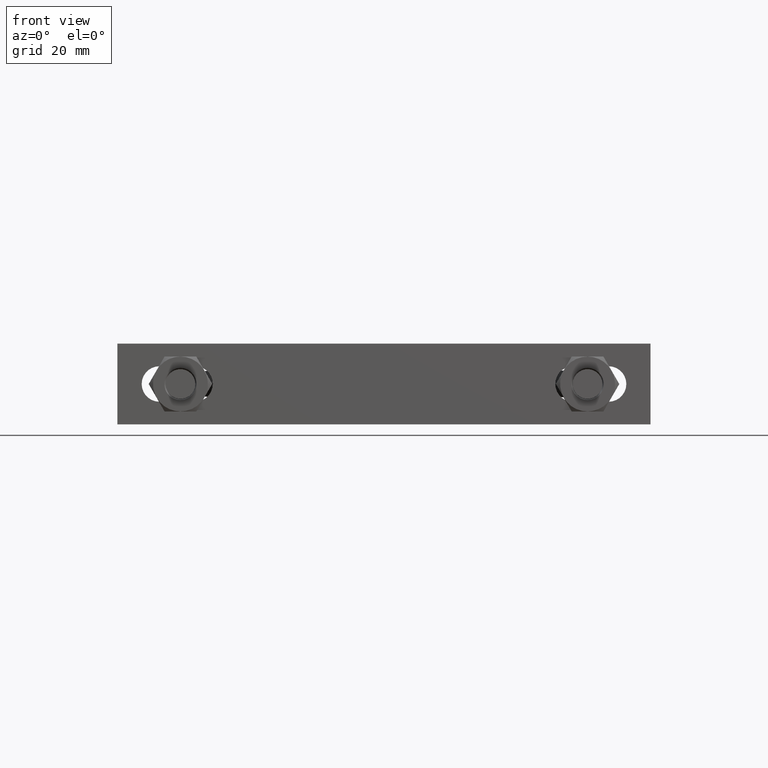
[diagram: clean part render]
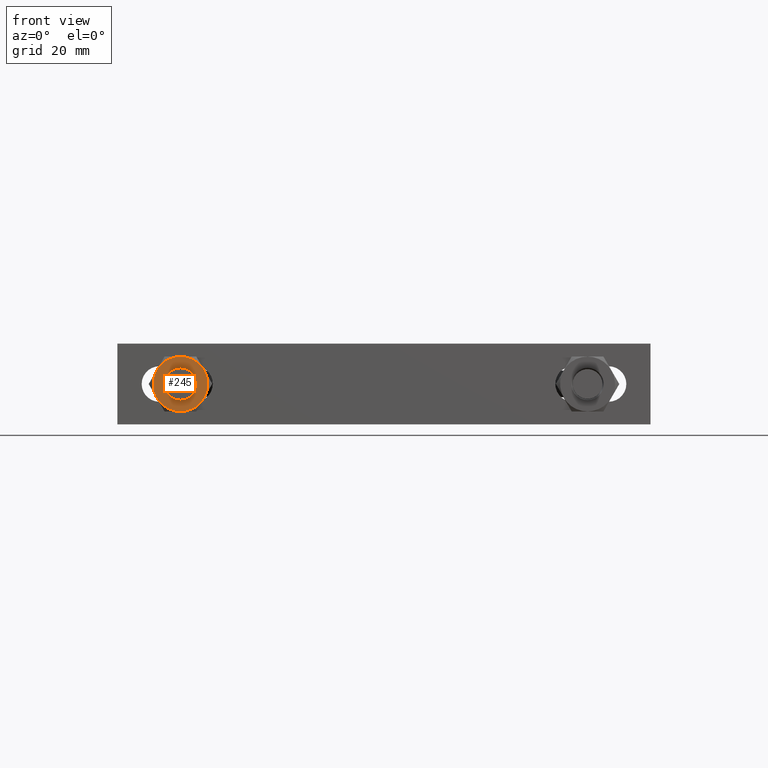
[diagram: same view with one face highlighted and labeled with its STEP entity id]
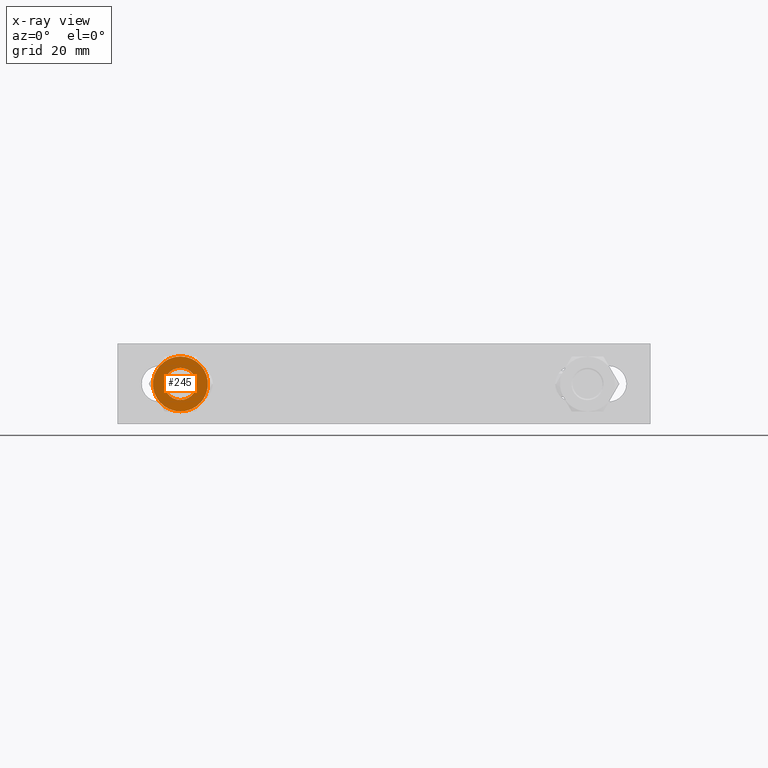
[diagram: x-ray of the same camera — body ghosted, the highlighted face saturated]
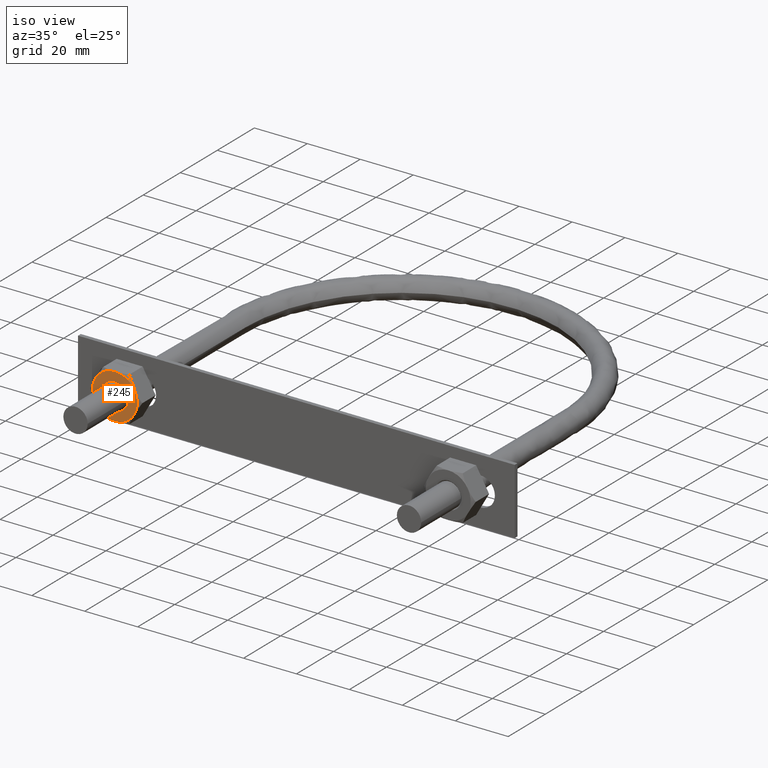
[diagram: same view with one face highlighted and labeled with its STEP entity id]
A machine part, front view. The second image highlights one B-rep face of the part: STEP entity #245.
The next image is the same camera in x-ray: the body ghosted, the highlighted face saturated — about 0% of this face is hidden behind the body in this view.
A second angle (iso view) of the same face is appended — the face is thin or edge-on in the first view.
In plain terms, the highlighted planar face has unit normal (0, 1, 0).
Its self-contained STEP definition (entity closure, byte-faithful):
#245 = ADVANCED_FACE( '', ( #352, #353 ), #354, .F. );
#352 = FACE_OUTER_BOUND( '', #672, .T. );
#353 = FACE_BOUND( '', #673, .T. );
#354 = PLANE( '', #674 );
#672 = EDGE_LOOP( '', ( #959, #960, #961, #962, #963, #964 ) );
#673 = EDGE_LOOP( '', ( #965 ) );
#674 = AXIS2_PLACEMENT_3D( '', #966, #967, #968 );
#959 = ORIENTED_EDGE( '', *, *, #1356, .F. );
#960 = ORIENTED_EDGE( '', *, *, #1357, .F. );
#961 = ORIENTED_EDGE( '', *, *, #1358, .F. );
#962 = ORIENTED_EDGE( '', *, *, #1359, .F. );
#963 = ORIENTED_EDGE( '', *, *, #1354, .F. );
#964 = ORIENTED_EDGE( '', *, *, #1360, .F. );
#965 = ORIENTED_EDGE( '', *, *, #1361, .T. );
#966 = CARTESIAN_POINT( '', ( -63.0000000000000, -13.8000000000000, 7.09200216010193E-065 ) );
#967 = DIRECTION( '', ( 6.12303176911189E-017, 1.00000000000000, 0.000000000000000 ) );
#968 = DIRECTION( '', ( 3.74915180455534E-033, -2.29561756065155E-049, -1.00000000000000 ) );
#1354 = EDGE_CURVE( '', #1551, #1553, #1554, .T. );
#1356 = EDGE_CURVE( '', #1556, #1557, #1558, .T. );
#1357 = EDGE_CURVE( '', #1559, #1556, #1560, .T. );
#1358 = EDGE_CURVE( '', #1561, #1559, #1562, .T. );
#1359 = EDGE_CURVE( '', #1553, #1561, #1563, .T. );
#1360 = EDGE_CURVE( '', #1557, #1551, #1564, .T. );
#1361 = EDGE_CURVE( '', #1565, #1565, #1566, .T. );
#1551 = VERTEX_POINT( '', #1865 );
#1553 = VERTEX_POINT( '', #1872 );
#1554 = CIRCLE( '', #1873, 8.50000000000000 );
#1556 = VERTEX_POINT( '', #1882 );
#1557 = VERTEX_POINT( '', #1883 );
#1558 = CIRCLE( '', #1884, 8.50000000000000 );
#1559 = VERTEX_POINT( '', #1885 );
#1560 = CIRCLE( '', #1886, 8.50000000000000 );
#1561 = VERTEX_POINT( '', #1887 );
#1562 = CIRCLE( '', #1888, 8.50000000000000 );
#1563 = CIRCLE( '', #1889, 8.50000000000000 );
#1564 = CIRCLE( '', #1890, 8.50000000000000 );
#1565 = VERTEX_POINT( '', #1891 );
#1566 = CIRCLE( '', #1892, 5.00000000000000 );
#1865 = CARTESIAN_POINT( '', ( -63.0000000000000, -13.8000000000000, 8.50000000000000 ) );
#1872 = CARTESIAN_POINT( '', ( -55.6387840678323, -13.8000000000000, 4.25000000000000 ) );
#1873 = AXIS2_PLACEMENT_3D( '', #2301, #2302, #2303 );
#1882 = CARTESIAN_POINT( '', ( -70.3612159321677, -13.8000000000000, -4.25000000000000 ) );
#1883 = CARTESIAN_POINT( '', ( -70.3612159321677, -13.8000000000000, 4.25000000000000 ) );
#1884 = AXIS2_PLACEMENT_3D( '', #2304, #2305, #2306 );
#1885 = CARTESIAN_POINT( '', ( -63.0000000000000, -13.8000000000000, -8.50000000000000 ) );
#1886 = AXIS2_PLACEMENT_3D( '', #2307, #2308, #2309 );
#1887 = CARTESIAN_POINT( '', ( -55.6387840678323, -13.8000000000000, -4.25000000000000 ) );
#1888 = AXIS2_PLACEMENT_3D( '', #2310, #2311, #2312 );
#1889 = AXIS2_PLACEMENT_3D( '', #2313, #2314, #2315 );
#1890 = AXIS2_PLACEMENT_3D( '', #2316, #2317, #2318 );
#1891 = CARTESIAN_POINT( '', ( -63.0000000000000, -13.8000000000000, -5.00000000000000 ) );
#1892 = AXIS2_PLACEMENT_3D( '', #2319, #2320, #2321 );
#2301 = CARTESIAN_POINT( '', ( -63.0000000000000, -13.8000000000000, 7.09200216010193E-065 ) );
#2302 = DIRECTION( '', ( 6.12303176911189E-017, 1.00000000000000, 6.72903901152805E-065 ) );
#2303 = DIRECTION( '', ( 3.74915180455534E-033, -2.29561756065155E-049, -1.00000000000000 ) );
#2304 = CARTESIAN_POINT( '', ( -63.0000000000000, -13.8000000000000, 7.09200216010193E-065 ) );
#2305 = DIRECTION( '', ( 6.12303176911189E-017, 1.00000000000000, 6.72903901152805E-065 ) );
#2306 = DIRECTION( '', ( 3.74915180455534E-033, -2.29561756065155E-049, -1.00000000000000 ) );
#2307 = CARTESIAN_POINT( '', ( -63.0000000000000, -13.8000000000000, 7.09200216010193E-065 ) );
#2308 = DIRECTION( '', ( 6.12303176911189E-017, 1.00000000000000, 6.72903901152805E-065 ) );
#2309 = DIRECTION( '', ( 3.74915180455534E-033, -2.29561756065155E-049, -1.00000000000000 ) );
#2310 = CARTESIAN_POINT( '', ( -63.0000000000000, -13.8000000000000, 7.09200216010193E-065 ) );
#2311 = DIRECTION( '', ( 6.12303176911189E-017, 1.00000000000000, 6.72903901152805E-065 ) );
#2312 = DIRECTION( '', ( 3.74915180455534E-033, -2.29561756065155E-049, -1.00000000000000 ) );
#2313 = CARTESIAN_POINT( '', ( -63.0000000000000, -13.8000000000000, 7.09200216010193E-065 ) );
#2314 = DIRECTION( '', ( 6.12303176911189E-017, 1.00000000000000, 6.72903901152805E-065 ) );
#2315 = DIRECTION( '', ( 3.74915180455534E-033, -2.29561756065155E-049, -1.00000000000000 ) );
#2316 = CARTESIAN_POINT( '', ( -63.0000000000000, -13.8000000000000, 7.09200216010193E-065 ) );
#2317 = DIRECTION( '', ( 6.12303176911189E-017, 1.00000000000000, 6.72903901152805E-065 ) );
#2318 = DIRECTION( '', ( 3.74915180455534E-033, -2.29561756065155E-049, -1.00000000000000 ) );
#2319 = CARTESIAN_POINT( '', ( -63.0000000000000, -13.8000000000000, 7.09200216010193E-065 ) );
#2320 = DIRECTION( '', ( 6.12303176911189E-017, 1.00000000000000, 0.000000000000000 ) );
#2321 = DIRECTION( '', ( 3.74915180455534E-033, -2.29561756065155E-049, -1.00000000000000 ) );